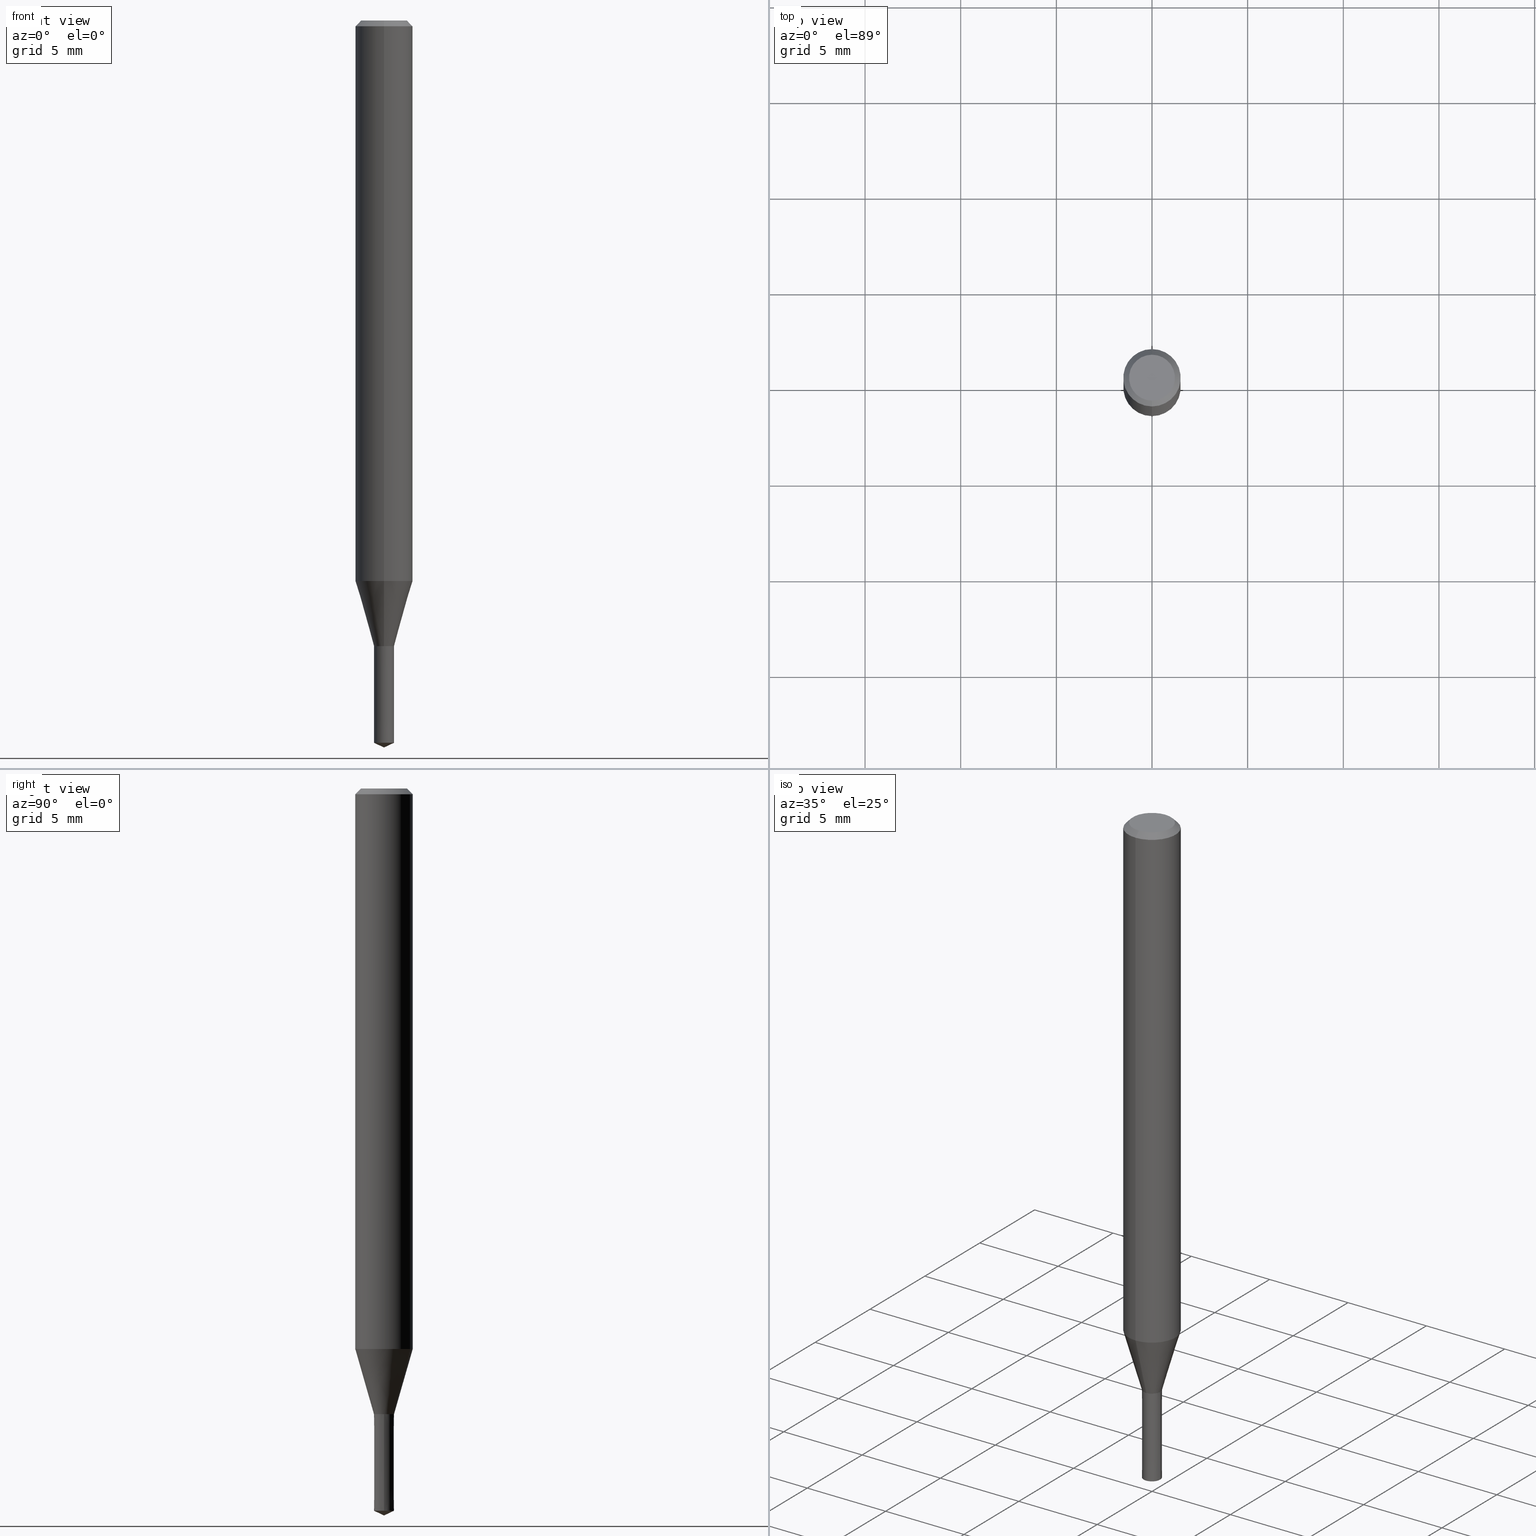
[diagram: canonical four-view strip — front | top / right | iso, engineering-drawing reading convention]
A machine part, canonical four-view strip (front | top / right | iso — engineering-drawing reading convention). The complete STEP part file that produces these views, byte-faithful:
ISO-10303-21;
HEADER;
FILE_DESCRIPTION(('no description'),'unknown implementation level');
FILE_NAME('UTDSX2105-053-Huellk.stp','  ',('CIMSOURCE GmbH'),('CADClick - KiM GmbH - www.kimweb.de'),'unknown preprocess','ACIS','unknown authorization');
FILE_SCHEMA(('automotive_design'));
ENDSEC;
DATA;
#1=MECHANICAL_DESIGN_GEOMETRIC_PRESENTATION_REPRESENTATION(' ',(#14,#15,#16,#17,#18,#19,#20,#21,#22,#23,#24,#25,#26,#27,#28,#29,#30,#31,#32,#33,#34,#35,#36,#37,#38,#39,#40,#41,#42,#43,#44,#45,#46,#47,#48,#49,#50,#51,#52,#53,#54,#55,#56,#57,#58,#59,#60,#61,#62,#63,#64,#65,#66,#67,#68,#69,#70,#71),#10);
#2=PRODUCT_DEFINITION_CONTEXT('',#72,'design');
#3=APPLICATION_PROTOCOL_DEFINITION('INTERNATIONAL STANDARD','automotive_design',1994,#72);
#4=PRODUCT_CATEGORY_RELATIONSHIP('NONE','NONE',#73,#74);
#5=SHAPE_DEFINITION_REPRESENTATION(#75,#76);
#6=PRODUCT_DEFINITION_CONTEXT('',#77,'design');
#7=APPLICATION_PROTOCOL_DEFINITION('INTERNATIONAL STANDARD','automotive_design',1994,#77);
#8=PRODUCT_CATEGORY_RELATIONSHIP('NONE','NONE',#78,#79);
#9=SHAPE_DEFINITION_REPRESENTATION(#80,#81);
#10= (GEOMETRIC_REPRESENTATION_CONTEXT(3)GLOBAL_UNCERTAINTY_ASSIGNED_CONTEXT((#84))GLOBAL_UNIT_ASSIGNED_CONTEXT((#86,#87,#88))REPRESENTATION_CONTEXT('NONE','WORKSPACE'));
#14=STYLED_ITEM('',(#90),#91);
#15=STYLED_ITEM('',(#92),#93);
#16=STYLED_ITEM('',(#94),#95);
#17=STYLED_ITEM('',(#96),#97);
#18=STYLED_ITEM('',(#98),#99);
#19=STYLED_ITEM('',(#100),#101);
#20=STYLED_ITEM('',(#102),#103);
#21=STYLED_ITEM('',(#104),#105);
#22=STYLED_ITEM('',(#106),#107);
#23=STYLED_ITEM('',(#108),#109);
#24=STYLED_ITEM('',(#110),#111);
#25=STYLED_ITEM('',(#112),#113);
#26=STYLED_ITEM('',(#114),#115);
#27=STYLED_ITEM('',(#116),#117);
#28=STYLED_ITEM('',(#118),#119);
#29=STYLED_ITEM('',(#120),#121);
#30=STYLED_ITEM('',(#122),#123);
#31=STYLED_ITEM('',(#124),#125);
#32=STYLED_ITEM('',(#126),#127);
#33=STYLED_ITEM('',(#128),#129);
#34=STYLED_ITEM('',(#130),#131);
#35=STYLED_ITEM('',(#132),#133);
#36=STYLED_ITEM('',(#134),#135);
#37=STYLED_ITEM('',(#136),#137);
#38=STYLED_ITEM('',(#138),#139);
#39=STYLED_ITEM('',(#140),#141);
#40=STYLED_ITEM('',(#142),#143);
#41=STYLED_ITEM('',(#144),#145);
#42=STYLED_ITEM('',(#146),#147);
#43=STYLED_ITEM('',(#148),#149);
#44=STYLED_ITEM('',(#150),#151);
#45=STYLED_ITEM('',(#152),#153);
#46=STYLED_ITEM('',(#154),#155);
#47=STYLED_ITEM('',(#156),#157);
#48=STYLED_ITEM('',(#158),#159);
#49=STYLED_ITEM('',(#160),#161);
#50=STYLED_ITEM('',(#162),#163);
#51=STYLED_ITEM('',(#164),#165);
#52=STYLED_ITEM('',(#166),#167);
#53=STYLED_ITEM('',(#168),#169);
#54=STYLED_ITEM('',(#170),#171);
#55=STYLED_ITEM('',(#172),#173);
#56=STYLED_ITEM('',(#174),#175);
#57=STYLED_ITEM('',(#176),#177);
#58=STYLED_ITEM('',(#178),#179);
#59=STYLED_ITEM('',(#180),#181);
#60=STYLED_ITEM('',(#182),#183);
#61=STYLED_ITEM('',(#184),#185);
#62=STYLED_ITEM('',(#186),#187);
#63=STYLED_ITEM('',(#188),#189);
#64=STYLED_ITEM('',(#190),#191);
#65=STYLED_ITEM('',(#192),#193);
#66=STYLED_ITEM('',(#194),#195);
#67=STYLED_ITEM('',(#196),#197);
#68=STYLED_ITEM('',(#198),#199);
#69=STYLED_ITEM('',(#200),#201);
#70=STYLED_ITEM('',(#202),#203);
#71=STYLED_ITEM('',(#204),#205);
#72=APPLICATION_CONTEXT(' ');
#73=PRODUCT_CATEGORY('part','NONE');
#74=PRODUCT_RELATED_PRODUCT_CATEGORY('detail',' ',(#206));
#75=PRODUCT_DEFINITION_SHAPE('NONE','NONE',#207);
#76=ADVANCED_BREP_SHAPE_REPRESENTATION('1',(#191,#208),#10);
#77=APPLICATION_CONTEXT(' ');
#78=PRODUCT_CATEGORY('part','NONE');
#79=PRODUCT_RELATED_PRODUCT_CATEGORY('detail',' ',(#209));
#80=PRODUCT_DEFINITION_SHAPE('NONE','NONE',#210);
#81=ADVANCED_BREP_SHAPE_REPRESENTATION('2',(#125,#211),#10);
#84=UNCERTAINTY_MEASURE_WITH_UNIT(LENGTH_MEASURE(1.0E-006),#86,'','');
#86= (CONVERSION_BASED_UNIT('MILLIMETRE',#214)LENGTH_UNIT()NAMED_UNIT(#217));
#87= (NAMED_UNIT(#219)PLANE_ANGLE_UNIT()SI_UNIT($,.RADIAN.));
#88= (NAMED_UNIT(#219)SOLID_ANGLE_UNIT()SI_UNIT($,.STERADIAN.));
#90=PRESENTATION_STYLE_ASSIGNMENT((#225));
#91=EDGE_CURVE('',#171,#153,#226,.T.);
#92=PRESENTATION_STYLE_ASSIGNMENT((#227));
#93=VERTEX_POINT('',#228);
#94=PRESENTATION_STYLE_ASSIGNMENT((#229));
#95=ADVANCED_FACE('',(#230),#231,.T.);
#96=PRESENTATION_STYLE_ASSIGNMENT((#232));
#97=VERTEX_POINT('',#233);
#98=PRESENTATION_STYLE_ASSIGNMENT((#234));
#99=EDGE_CURVE('',#97,#129,#235,.T.);
#100=PRESENTATION_STYLE_ASSIGNMENT((#236));
#101=VERTEX_POINT('',#237);
#102=PRESENTATION_STYLE_ASSIGNMENT((#238));
#103=ADVANCED_FACE('',(#239),#240,.T.);
#104=PRESENTATION_STYLE_ASSIGNMENT((#241));
#105=ADVANCED_FACE('',(#242),#243,.T.);
#106=PRESENTATION_STYLE_ASSIGNMENT((#244));
#107=EDGE_CURVE('',#93,#101,#245,.T.);
#108=PRESENTATION_STYLE_ASSIGNMENT((#246));
#109=EDGE_CURVE('',#153,#169,#247,.T.);
#110=PRESENTATION_STYLE_ASSIGNMENT((#248));
#111=EDGE_CURVE('',#171,#139,#249,.T.);
#112=PRESENTATION_STYLE_ASSIGNMENT((#250));
#113=ADVANCED_FACE('',(#251),#252,.T.);
#114=PRESENTATION_STYLE_ASSIGNMENT((#253));
#115=EDGE_CURVE('',#173,#127,#254,.T.);
#116=PRESENTATION_STYLE_ASSIGNMENT((#255));
#117=ADVANCED_FACE('',(#256),#257,.T.);
#118=PRESENTATION_STYLE_ASSIGNMENT((#258));
#119=ADVANCED_FACE('',(#259),#260,.T.);
#120=PRESENTATION_STYLE_ASSIGNMENT((#261));
#121=EDGE_CURVE('',#133,#201,#262,.T.);
#122=PRESENTATION_STYLE_ASSIGNMENT((#263));
#123=ADVANCED_FACE('',(#264),#265,.T.);
#124=PRESENTATION_STYLE_ASSIGNMENT((#266));
#125=MANIFOLD_SOLID_BREP('2',#267);
#126=PRESENTATION_STYLE_ASSIGNMENT((#268));
#127=VERTEX_POINT('',#269);
#128=PRESENTATION_STYLE_ASSIGNMENT((#270));
#129=VERTEX_POINT('',#271);
#130=PRESENTATION_STYLE_ASSIGNMENT((#272));
#131=EDGE_CURVE('',#127,#147,#273,.T.);
#132=PRESENTATION_STYLE_ASSIGNMENT((#274));
#133=VERTEX_POINT('',#275);
#134=PRESENTATION_STYLE_ASSIGNMENT((#276));
#135=ADVANCED_FACE('',(#277),#278,.T.);
#136=PRESENTATION_STYLE_ASSIGNMENT((#279));
#137=EDGE_CURVE('',#93,#169,#280,.T.);
#138=PRESENTATION_STYLE_ASSIGNMENT((#281));
#139=VERTEX_POINT('',#282);
#140=PRESENTATION_STYLE_ASSIGNMENT((#283));
#141=EDGE_CURVE('',#101,#139,#284,.T.);
#142=PRESENTATION_STYLE_ASSIGNMENT((#285));
#143=ADVANCED_FACE('',(#286),#287,.T.);
#144=PRESENTATION_STYLE_ASSIGNMENT((#288));
#145=ADVANCED_FACE('',(#289),#290,.T.);
#146=PRESENTATION_STYLE_ASSIGNMENT((#291));
#147=VERTEX_POINT('',#292);
#148=PRESENTATION_STYLE_ASSIGNMENT((#293));
#149=VERTEX_POINT('',#294);
#150=PRESENTATION_STYLE_ASSIGNMENT((#295));
#151=EDGE_CURVE('',#149,#203,#296,.T.);
#152=PRESENTATION_STYLE_ASSIGNMENT((#297));
#153=VERTEX_POINT('',#298);
#154=PRESENTATION_STYLE_ASSIGNMENT((#299));
#155=EDGE_CURVE('',#97,#173,#300,.T.);
#156=PRESENTATION_STYLE_ASSIGNMENT((#301));
#157=EDGE_CURVE('',#139,#171,#302,.T.);
#158=PRESENTATION_STYLE_ASSIGNMENT((#303));
#159=EDGE_CURVE('',#129,#97,#304,.T.);
#160=PRESENTATION_STYLE_ASSIGNMENT((#305));
#161=EDGE_CURVE('',#101,#153,#306,.T.);
#162=PRESENTATION_STYLE_ASSIGNMENT((#307));
#163=ADVANCED_FACE('',(#308),#309,.T.);
#164=PRESENTATION_STYLE_ASSIGNMENT((#310));
#165=ADVANCED_FACE('',(#311),#312,.T.);
#166=PRESENTATION_STYLE_ASSIGNMENT((#313));
#167=EDGE_CURVE('',#201,#133,#314,.T.);
#168=PRESENTATION_STYLE_ASSIGNMENT((#315));
#169=VERTEX_POINT('',#316);
#170=PRESENTATION_STYLE_ASSIGNMENT((#317));
#171=VERTEX_POINT('',#318);
#172=PRESENTATION_STYLE_ASSIGNMENT((#319));
#173=VERTEX_POINT('',#320);
#174=PRESENTATION_STYLE_ASSIGNMENT((#321));
#175=EDGE_CURVE('',#133,#171,#322,.T.);
#176=PRESENTATION_STYLE_ASSIGNMENT((#323));
#177=EDGE_CURVE('',#147,#129,#324,.T.);
#178=PRESENTATION_STYLE_ASSIGNMENT((#325));
#179=EDGE_CURVE('',#147,#173,#326,.T.);
#180=PRESENTATION_STYLE_ASSIGNMENT((#327));
#181=EDGE_CURVE('',#201,#149,#328,.T.);
#182=PRESENTATION_STYLE_ASSIGNMENT((#329));
#183=EDGE_CURVE('',#203,#149,#330,.T.);
#184=PRESENTATION_STYLE_ASSIGNMENT((#331));
#185=ADVANCED_FACE('',(#332),#333,.T.);
#186=PRESENTATION_STYLE_ASSIGNMENT((#334));
#187=EDGE_CURVE('',#203,#133,#335,.T.);
#188=PRESENTATION_STYLE_ASSIGNMENT((#336));
#189=EDGE_CURVE('',#173,#147,#337,.T.);
#190=PRESENTATION_STYLE_ASSIGNMENT((#338));
#191=MANIFOLD_SOLID_BREP('1',#339);
#192=PRESENTATION_STYLE_ASSIGNMENT((#340));
#193=EDGE_CURVE('',#169,#93,#341,.T.);
#194=PRESENTATION_STYLE_ASSIGNMENT((#342));
#195=EDGE_CURVE('',#153,#101,#343,.T.);
#196=PRESENTATION_STYLE_ASSIGNMENT((#344));
#197=ADVANCED_FACE('',(#345),#346,.T.);
#198=PRESENTATION_STYLE_ASSIGNMENT((#347));
#199=ADVANCED_FACE('',(#348),#349,.T.);
#200=PRESENTATION_STYLE_ASSIGNMENT((#350));
#201=VERTEX_POINT('',#351);
#202=PRESENTATION_STYLE_ASSIGNMENT((#352));
#203=VERTEX_POINT('',#353);
#204=PRESENTATION_STYLE_ASSIGNMENT((#354));
#205=EDGE_CURVE('',#139,#201,#355,.T.);
#206=PRODUCT('1','1','PART-1-DESC',(#356));
#207=PRODUCT_DEFINITION('NONE','NONE',#357,#2);
#208=AXIS2_PLACEMENT_3D('',#358,#359,#360);
#209=PRODUCT('2','2','PART-2-DESC',(#361));
#210=PRODUCT_DEFINITION('NONE','NONE',#362,#6);
#211=AXIS2_PLACEMENT_3D('',#363,#364,#365);
#214=LENGTH_MEASURE_WITH_UNIT(LENGTH_MEASURE(1.0),#366);
#217=DIMENSIONAL_EXPONENTS(1.0,0.0,0.0,0.0,0.0,0.0,0.0);
#219=DIMENSIONAL_EXPONENTS(0.0,0.0,0.0,0.0,0.0,0.0,0.0);
#225=CURVE_STYLE('',#367,POSITIVE_LENGTH_MEASURE(1.0E-006),#368);
#226=LINE('',#369,#370);
#227=POINT_STYLE(' ',#371,POSITIVE_LENGTH_MEASURE(1.0E-006),#372);
#228=CARTESIAN_POINT('',(0.0,1.2,0.0));
#229=SURFACE_STYLE_USAGE(.BOTH.,#373);
#230=FACE_OUTER_BOUND('',#374,.T.);
#231=CONICAL_SURFACE('',#375,0.2625,1.13446401462768);
#232=POINT_STYLE(' ',#376,POSITIVE_LENGTH_MEASURE(1.0E-006),#377);
#233=CARTESIAN_POINT('',(-0.526,0.0,-32.7));
#234=CURVE_STYLE('',#378,POSITIVE_LENGTH_MEASURE(1.0E-006),#379);
#235=CIRCLE('',#380,0.526);
#236=POINT_STYLE(' ',#381,POSITIVE_LENGTH_MEASURE(1.0E-006),#382);
#237=CARTESIAN_POINT('',(0.0,1.5,-0.300000000000001));
#238=SURFACE_STYLE_USAGE(.BOTH.,#383);
#239=FACE_OUTER_BOUND('',#384,.T.);
#240=CONICAL_SURFACE('',#385,1.35,0.785398163397447);
#241=SURFACE_STYLE_USAGE(.BOTH.,#386);
#242=FACE_OUTER_BOUND('',#387,.T.);
#243=CONICAL_SURFACE('',#388,1.0125,0.279338040987867);
#244=CURVE_STYLE('',#389,POSITIVE_LENGTH_MEASURE(1.0E-006),#390);
#245=LINE('',#391,#392);
#246=CURVE_STYLE('',#393,POSITIVE_LENGTH_MEASURE(1.0E-006),#394);
#247=LINE('',#395,#396);
#248=CURVE_STYLE('',#397,POSITIVE_LENGTH_MEASURE(1.0E-006),#398);
#249=CIRCLE('',#399,1.5);
#250=SURFACE_STYLE_USAGE(.BOTH.,#400);
#251=FACE_OUTER_BOUND('',#401,.T.);
#252=CONICAL_SURFACE('',#402,0.2625,1.13446401462768);
#253=CURVE_STYLE('',#403,POSITIVE_LENGTH_MEASURE(1.0E-006),#404);
#254=LINE('',#405,#406);
#255=SURFACE_STYLE_USAGE(.BOTH.,#407);
#256=FACE_OUTER_BOUND('',#408,.T.);
#257=PLANE('',#409);
#258=SURFACE_STYLE_USAGE(.BOTH.,#410);
#259=FACE_OUTER_BOUND('',#411,.T.);
#260=CONICAL_SURFACE('',#412,1.35,0.785398163397447);
#261=CURVE_STYLE('',#413,POSITIVE_LENGTH_MEASURE(1.0E-006),#414);
#262=CIRCLE('',#415,0.525);
#263=SURFACE_STYLE_USAGE(.BOTH.,#416);
#264=FACE_OUTER_BOUND('',#417,.T.);
#265=PLANE('',#418);
#266=SURFACE_STYLE_USAGE(.BOTH.,#419);
#267=CLOSED_SHELL('',(#113,#135,#117,#199,#95));
#268=POINT_STYLE(' ',#420,POSITIVE_LENGTH_MEASURE(1.0E-006),#421);
#269=CARTESIAN_POINT('',(0.0,0.0,-38.0));
#270=POINT_STYLE(' ',#422,POSITIVE_LENGTH_MEASURE(1.0E-006),#423);
#271=CARTESIAN_POINT('',(0.526,6.4414294211057E-017,-32.7));
#272=CURVE_STYLE('',#424,POSITIVE_LENGTH_MEASURE(1.0E-006),#425);
#273=LINE('',#426,#427);
#274=POINT_STYLE(' ',#428,POSITIVE_LENGTH_MEASURE(1.0E-006),#429);
#275=CARTESIAN_POINT('',(6.42918335756748E-017,-0.525,-32.6991339745962));
#276=SURFACE_STYLE_USAGE(.BOTH.,#430);
#277=FACE_OUTER_BOUND('',#431,.T.);
#278=CONICAL_SURFACE('',#432,0.5255,0.000197816558356337);
#279=CURVE_STYLE('',#433,POSITIVE_LENGTH_MEASURE(1.0E-006),#434);
#280=CIRCLE('',#435,1.2);
#281=POINT_STYLE(' ',#436,POSITIVE_LENGTH_MEASURE(1.0E-006),#437);
#282=CARTESIAN_POINT('',(0.0,1.5,-29.3));
#283=CURVE_STYLE('',#438,POSITIVE_LENGTH_MEASURE(1.0E-006),#439);
#284=LINE('',#440,#441);
#285=SURFACE_STYLE_USAGE(.BOTH.,#442);
#286=FACE_OUTER_BOUND('',#443,.T.);
#287=CONICAL_SURFACE('',#444,0.52525,0.52359877559836);
#288=SURFACE_STYLE_USAGE(.BOTH.,#445);
#289=FACE_OUTER_BOUND('',#446,.T.);
#290=CYLINDRICAL_SURFACE('',#447,1.5);
#291=POINT_STYLE(' ',#448,POSITIVE_LENGTH_MEASURE(1.0E-006),#449);
#292=CARTESIAN_POINT('',(0.525,6.42918335756748E-017,-37.75518848));
#293=POINT_STYLE(' ',#450,POSITIVE_LENGTH_MEASURE(1.0E-006),#451);
#294=CARTESIAN_POINT('',(0.0,0.5255,-32.7));
#295=CURVE_STYLE('',#452,POSITIVE_LENGTH_MEASURE(1.0E-006),#453);
#296=CIRCLE('',#454,0.5255);
#297=POINT_STYLE(' ',#455,POSITIVE_LENGTH_MEASURE(1.0E-006),#456);
#298=CARTESIAN_POINT('',(1.83690953073357E-016,-1.5,-0.300000000000001));
#299=CURVE_STYLE('',#457,POSITIVE_LENGTH_MEASURE(1.0E-006),#458);
#300=LINE('',#459,#460);
#301=CURVE_STYLE('',#461,POSITIVE_LENGTH_MEASURE(1.0E-006),#462);
#302=CIRCLE('',#463,1.5);
#303=CURVE_STYLE('',#464,POSITIVE_LENGTH_MEASURE(1.0E-006),#465);
#304=CIRCLE('',#466,0.526);
#305=CURVE_STYLE('',#467,POSITIVE_LENGTH_MEASURE(1.0E-006),#468);
#306=CIRCLE('',#469,1.5);
#307=SURFACE_STYLE_USAGE(.BOTH.,#470);
#308=FACE_OUTER_BOUND('',#471,.T.);
#309=CYLINDRICAL_SURFACE('',#472,1.5);
#310=SURFACE_STYLE_USAGE(.BOTH.,#473);
#311=FACE_OUTER_BOUND('',#474,.T.);
#312=PLANE('',#475);
#313=CURVE_STYLE('',#476,POSITIVE_LENGTH_MEASURE(1.0E-006),#477);
#314=CIRCLE('',#478,0.525);
#315=POINT_STYLE(' ',#479,POSITIVE_LENGTH_MEASURE(1.0E-006),#480);
#316=CARTESIAN_POINT('',(1.46952762458685E-016,-1.2,0.0));
#317=POINT_STYLE(' ',#481,POSITIVE_LENGTH_MEASURE(1.0E-006),#482);
#318=CARTESIAN_POINT('',(1.83690953073357E-016,-1.5,-29.3));
#319=POINT_STYLE(' ',#483,POSITIVE_LENGTH_MEASURE(1.0E-006),#484);
#320=CARTESIAN_POINT('',(-0.525,0.0,-37.75518848));
#321=CURVE_STYLE('',#485,POSITIVE_LENGTH_MEASURE(1.0E-006),#486);
#322=LINE('',#487,#488);
#323=CURVE_STYLE('',#489,POSITIVE_LENGTH_MEASURE(1.0E-006),#490);
#324=LINE('',#491,#492);
#325=CURVE_STYLE('',#493,POSITIVE_LENGTH_MEASURE(1.0E-006),#494);
#326=CIRCLE('',#495,0.525);
#327=CURVE_STYLE('',#496,POSITIVE_LENGTH_MEASURE(1.0E-006),#497);
#328=LINE('',#498,#499);
#329=CURVE_STYLE('',#500,POSITIVE_LENGTH_MEASURE(1.0E-006),#501);
#330=CIRCLE('',#502,0.5255);
#331=SURFACE_STYLE_USAGE(.BOTH.,#503);
#332=FACE_OUTER_BOUND('',#504,.T.);
#333=CONICAL_SURFACE('',#505,1.0125,0.279338040987867);
#334=CURVE_STYLE('',#506,POSITIVE_LENGTH_MEASURE(1.0E-006),#507);
#335=LINE('',#508,#509);
#336=CURVE_STYLE('',#510,POSITIVE_LENGTH_MEASURE(1.0E-006),#511);
#337=CIRCLE('',#512,0.525);
#338=SURFACE_STYLE_USAGE(.BOTH.,#513);
#339=CLOSED_SHELL('',(#143,#105,#145,#103,#123,#119,#163,#185,#197,#165));
#340=CURVE_STYLE('',#514,POSITIVE_LENGTH_MEASURE(1.0E-006),#515);
#341=CIRCLE('',#516,1.2);
#342=CURVE_STYLE('',#517,POSITIVE_LENGTH_MEASURE(1.0E-006),#518);
#343=CIRCLE('',#519,1.5);
#344=SURFACE_STYLE_USAGE(.BOTH.,#520);
#345=FACE_OUTER_BOUND('',#521,.T.);
#346=CONICAL_SURFACE('',#522,0.52525,0.52359877559836);
#347=SURFACE_STYLE_USAGE(.BOTH.,#523);
#348=FACE_OUTER_BOUND('',#524,.T.);
#349=CONICAL_SURFACE('',#525,0.5255,0.000197816558356337);
#350=POINT_STYLE(' ',#526,POSITIVE_LENGTH_MEASURE(1.0E-006),#527);
#351=CARTESIAN_POINT('',(0.0,0.525,-32.6991339745962));
#352=POINT_STYLE(' ',#528,POSITIVE_LENGTH_MEASURE(1.0E-006),#529);
#353=CARTESIAN_POINT('',(6.43530638933659E-017,-0.5255,-32.7));
#354=CURVE_STYLE('',#530,POSITIVE_LENGTH_MEASURE(1.0E-006),#531);
#355=LINE('',#532,#533);
#356=PRODUCT_CONTEXT('',#72,'mechanical');
#357=PRODUCT_DEFINITION_FORMATION_WITH_SPECIFIED_SOURCE(' ','NONE',#206,.NOT_KNOWN.);
#358=CARTESIAN_POINT('',(0.0,0.0,0.0));
#359=DIRECTION('',(0.0,0.0,1.0));
#360=DIRECTION('',(1.0,0.0,0.0));
#361=PRODUCT_CONTEXT('',#77,'mechanical');
#362=PRODUCT_DEFINITION_FORMATION_WITH_SPECIFIED_SOURCE(' ','NONE',#209,.NOT_KNOWN.);
#363=CARTESIAN_POINT('',(0.0,0.0,0.0));
#364=DIRECTION('',(0.0,0.0,1.0));
#365=DIRECTION('',(1.0,0.0,0.0));
#366= (NAMED_UNIT(#217)LENGTH_UNIT()SI_UNIT(.MILLI.,.METRE.));
#367=DRAUGHTING_PRE_DEFINED_CURVE_FONT('continuous');
#368=COLOUR_RGB('',0.498039215803146,0.498039215803146,0.498039215803146);
#369=CARTESIAN_POINT('',(1.83690953073357E-016,-1.5,-14.8));
#370=VECTOR('',#535,1.0);
#371=PRE_DEFINED_MARKER('');
#372=COLOUR_RGB('',0.498039215803146,0.498039215803146,0.498039215803146);
#373=SURFACE_SIDE_STYLE('',(#536));
#374=EDGE_LOOP('',(#537,#538,#539));
#375=AXIS2_PLACEMENT_3D('',#540,#541,#542);
#376=PRE_DEFINED_MARKER('');
#377=COLOUR_RGB('',0.800000011920929,0.800000011920929,0.800000011920929);
#378=DRAUGHTING_PRE_DEFINED_CURVE_FONT('continuous');
#379=COLOUR_RGB('',0.800000011920929,0.800000011920929,0.800000011920929);
#380=AXIS2_PLACEMENT_3D('',#543,#544,#545);
#381=PRE_DEFINED_MARKER('');
#382=COLOUR_RGB('',0.498039215803146,0.498039215803146,0.498039215803146);
#383=SURFACE_SIDE_STYLE('',(#546));
#384=EDGE_LOOP('',(#547,#548,#549,#550));
#385=AXIS2_PLACEMENT_3D('',#551,#552,#553);
#386=SURFACE_SIDE_STYLE('',(#554));
#387=EDGE_LOOP('',(#555,#556,#557,#558));
#388=AXIS2_PLACEMENT_3D('',#559,#560,#561);
#389=DRAUGHTING_PRE_DEFINED_CURVE_FONT('continuous');
#390=COLOUR_RGB('',0.498039215803146,0.498039215803146,0.498039215803146);
#391=CARTESIAN_POINT('',(-1.65321857766021E-016,1.35,-0.149999999999999));
#392=VECTOR('',#562,1.0);
#393=DRAUGHTING_PRE_DEFINED_CURVE_FONT('continuous');
#394=COLOUR_RGB('',0.498039215803146,0.498039215803146,0.498039215803146);
#395=CARTESIAN_POINT('',(1.65321857766021E-016,-1.35,-0.149999999999999));
#396=VECTOR('',#563,1.0);
#397=DRAUGHTING_PRE_DEFINED_CURVE_FONT('continuous');
#398=COLOUR_RGB('',0.498039215803146,0.498039215803146,0.498039215803146);
#399=AXIS2_PLACEMENT_3D('',#564,#565,#566);
#400=SURFACE_SIDE_STYLE('',(#567));
#401=EDGE_LOOP('',(#568,#569,#570));
#402=AXIS2_PLACEMENT_3D('',#571,#572,#573);
#403=DRAUGHTING_PRE_DEFINED_CURVE_FONT('continuous');
#404=COLOUR_RGB('',0.800000011920929,0.800000011920929,0.800000011920929);
#405=CARTESIAN_POINT('',(-0.2625,-3.21459167878374E-017,-37.87759424));
#406=VECTOR('',#574,1.0);
#407=SURFACE_SIDE_STYLE('',(#575));
#408=EDGE_LOOP('',(#576,#577));
#409=AXIS2_PLACEMENT_3D('',#578,#579,#580);
#410=SURFACE_SIDE_STYLE('',(#581));
#411=EDGE_LOOP('',(#582,#583,#584,#585));
#412=AXIS2_PLACEMENT_3D('',#586,#587,#588);
#413=DRAUGHTING_PRE_DEFINED_CURVE_FONT('continuous');
#414=COLOUR_RGB('',0.498039215803146,0.498039215803146,0.498039215803146);
#415=AXIS2_PLACEMENT_3D('',#589,#590,#591);
#416=SURFACE_SIDE_STYLE('',(#592));
#417=EDGE_LOOP('',(#593,#594));
#418=AXIS2_PLACEMENT_3D('',#595,#596,#597);
#419=SURFACE_SIDE_STYLE('',(#598));
#420=PRE_DEFINED_MARKER('');
#421=COLOUR_RGB('',0.800000011920929,0.800000011920929,0.800000011920929);
#422=PRE_DEFINED_MARKER('');
#423=COLOUR_RGB('',0.800000011920929,0.800000011920929,0.800000011920929);
#424=DRAUGHTING_PRE_DEFINED_CURVE_FONT('continuous');
#425=COLOUR_RGB('',0.800000011920929,0.800000011920929,0.800000011920929);
#426=CARTESIAN_POINT('',(0.2625,3.21459167878374E-017,-37.87759424));
#427=VECTOR('',#599,1.0);
#428=PRE_DEFINED_MARKER('');
#429=COLOUR_RGB('',0.498039215803146,0.498039215803146,0.498039215803146);
#430=SURFACE_SIDE_STYLE('',(#600));
#431=EDGE_LOOP('',(#601,#602,#603,#604));
#432=AXIS2_PLACEMENT_3D('',#605,#606,#607);
#433=DRAUGHTING_PRE_DEFINED_CURVE_FONT('continuous');
#434=COLOUR_RGB('',0.498039215803146,0.498039215803146,0.498039215803146);
#435=AXIS2_PLACEMENT_3D('',#608,#609,#610);
#436=PRE_DEFINED_MARKER('');
#437=COLOUR_RGB('',0.498039215803146,0.498039215803146,0.498039215803146);
#438=DRAUGHTING_PRE_DEFINED_CURVE_FONT('continuous');
#439=COLOUR_RGB('',0.498039215803146,0.498039215803146,0.498039215803146);
#440=CARTESIAN_POINT('',(-1.83690953073357E-016,1.5,-14.8));
#441=VECTOR('',#611,1.0);
#442=SURFACE_SIDE_STYLE('',(#612));
#443=EDGE_LOOP('',(#613,#614,#615,#616));
#444=AXIS2_PLACEMENT_3D('',#617,#618,#619);
#445=SURFACE_SIDE_STYLE('',(#620));
#446=EDGE_LOOP('',(#621,#622,#623,#624));
#447=AXIS2_PLACEMENT_3D('',#625,#626,#627);
#448=PRE_DEFINED_MARKER('');
#449=COLOUR_RGB('',0.800000011920929,0.800000011920929,0.800000011920929);
#450=PRE_DEFINED_MARKER('');
#451=COLOUR_RGB('',0.498039215803146,0.498039215803146,0.498039215803146);
#452=DRAUGHTING_PRE_DEFINED_CURVE_FONT('continuous');
#453=COLOUR_RGB('',0.498039215803146,0.498039215803146,0.498039215803146);
#454=AXIS2_PLACEMENT_3D('',#628,#629,#630);
#455=PRE_DEFINED_MARKER('');
#456=COLOUR_RGB('',0.498039215803146,0.498039215803146,0.498039215803146);
#457=DRAUGHTING_PRE_DEFINED_CURVE_FONT('continuous');
#458=COLOUR_RGB('',0.800000011920929,0.800000011920929,0.800000011920929);
#459=CARTESIAN_POINT('',(-0.5255,-6.43530638933659E-017,-35.22759424));
#460=VECTOR('',#631,1.0);
#461=DRAUGHTING_PRE_DEFINED_CURVE_FONT('continuous');
#462=COLOUR_RGB('',0.498039215803146,0.498039215803146,0.498039215803146);
#463=AXIS2_PLACEMENT_3D('',#632,#633,#634);
#464=DRAUGHTING_PRE_DEFINED_CURVE_FONT('continuous');
#465=COLOUR_RGB('',0.800000011920929,0.800000011920929,0.800000011920929);
#466=AXIS2_PLACEMENT_3D('',#635,#636,#637);
#467=DRAUGHTING_PRE_DEFINED_CURVE_FONT('continuous');
#468=COLOUR_RGB('',0.498039215803146,0.498039215803146,0.498039215803146);
#469=AXIS2_PLACEMENT_3D('',#638,#639,#640);
#470=SURFACE_SIDE_STYLE('',(#641));
#471=EDGE_LOOP('',(#642,#643,#644,#645));
#472=AXIS2_PLACEMENT_3D('',#646,#647,#648);
#473=SURFACE_SIDE_STYLE('',(#649));
#474=EDGE_LOOP('',(#650,#651));
#475=AXIS2_PLACEMENT_3D('',#652,#653,#654);
#476=DRAUGHTING_PRE_DEFINED_CURVE_FONT('continuous');
#477=COLOUR_RGB('',0.498039215803146,0.498039215803146,0.498039215803146);
#478=AXIS2_PLACEMENT_3D('',#655,#656,#657);
#479=PRE_DEFINED_MARKER('');
#480=COLOUR_RGB('',0.498039215803146,0.498039215803146,0.498039215803146);
#481=PRE_DEFINED_MARKER('');
#482=COLOUR_RGB('',0.498039215803146,0.498039215803146,0.498039215803146);
#483=PRE_DEFINED_MARKER('');
#484=COLOUR_RGB('',0.800000011920929,0.800000011920929,0.800000011920929);
#485=DRAUGHTING_PRE_DEFINED_CURVE_FONT('continuous');
#486=COLOUR_RGB('',0.498039215803146,0.498039215803146,0.498039215803146);
#487=CARTESIAN_POINT('',(1.23991393324516E-016,-1.0125,-30.9995669872981));
#488=VECTOR('',#658,1.0);
#489=DRAUGHTING_PRE_DEFINED_CURVE_FONT('continuous');
#490=COLOUR_RGB('',0.800000011920929,0.800000011920929,0.800000011920929);
#491=CARTESIAN_POINT('',(0.5255,6.43530638933659E-017,-35.22759424));
#492=VECTOR('',#659,1.0);
#493=DRAUGHTING_PRE_DEFINED_CURVE_FONT('continuous');
#494=COLOUR_RGB('',0.800000011920929,0.800000011920929,0.800000011920929);
#495=AXIS2_PLACEMENT_3D('',#660,#661,#662);
#496=DRAUGHTING_PRE_DEFINED_CURVE_FONT('continuous');
#497=COLOUR_RGB('',0.498039215803146,0.498039215803146,0.498039215803146);
#498=CARTESIAN_POINT('',(-6.43224487345204E-017,0.52525,-32.6995669872981));
#499=VECTOR('',#663,1.0);
#500=DRAUGHTING_PRE_DEFINED_CURVE_FONT('continuous');
#501=COLOUR_RGB('',0.498039215803146,0.498039215803146,0.498039215803146);
#502=AXIS2_PLACEMENT_3D('',#664,#665,#666);
#503=SURFACE_SIDE_STYLE('',(#667));
#504=EDGE_LOOP('',(#668,#669,#670,#671));
#505=AXIS2_PLACEMENT_3D('',#672,#673,#674);
#506=DRAUGHTING_PRE_DEFINED_CURVE_FONT('continuous');
#507=COLOUR_RGB('',0.498039215803146,0.498039215803146,0.498039215803146);
#508=CARTESIAN_POINT('',(6.43224487345203E-017,-0.52525,-32.6995669872981));
#509=VECTOR('',#675,1.0);
#510=DRAUGHTING_PRE_DEFINED_CURVE_FONT('continuous');
#511=COLOUR_RGB('',0.800000011920929,0.800000011920929,0.800000011920929);
#512=AXIS2_PLACEMENT_3D('',#676,#677,#678);
#513=SURFACE_SIDE_STYLE('',(#679));
#514=DRAUGHTING_PRE_DEFINED_CURVE_FONT('continuous');
#515=COLOUR_RGB('',0.498039215803146,0.498039215803146,0.498039215803146);
#516=AXIS2_PLACEMENT_3D('',#680,#681,#682);
#517=DRAUGHTING_PRE_DEFINED_CURVE_FONT('continuous');
#518=COLOUR_RGB('',0.498039215803146,0.498039215803146,0.498039215803146);
#519=AXIS2_PLACEMENT_3D('',#683,#684,#685);
#520=SURFACE_SIDE_STYLE('',(#686));
#521=EDGE_LOOP('',(#687,#688,#689,#690));
#522=AXIS2_PLACEMENT_3D('',#691,#692,#693);
#523=SURFACE_SIDE_STYLE('',(#694));
#524=EDGE_LOOP('',(#695,#696,#697,#698));
#525=AXIS2_PLACEMENT_3D('',#699,#700,#701);
#526=PRE_DEFINED_MARKER('');
#527=COLOUR_RGB('',0.498039215803146,0.498039215803146,0.498039215803146);
#528=PRE_DEFINED_MARKER('');
#529=COLOUR_RGB('',0.498039215803146,0.498039215803146,0.498039215803146);
#530=DRAUGHTING_PRE_DEFINED_CURVE_FONT('continuous');
#531=COLOUR_RGB('',0.498039215803146,0.498039215803146,0.498039215803146);
#532=CARTESIAN_POINT('',(-1.23991393324516E-016,1.0125,-30.9995669872981));
#533=VECTOR('',#702,1.0);
#535=DIRECTION('',(-0.0,-0.0,1.0));
#536=SURFACE_STYLE_FILL_AREA(#703);
#537=ORIENTED_EDGE('',*,*,#131,.T.);
#538=ORIENTED_EDGE('',*,*,#179,.T.);
#539=ORIENTED_EDGE('',*,*,#115,.T.);
#540=CARTESIAN_POINT('',(0.0,0.0,-37.87759424));
#541=DIRECTION('',(-0.0,-0.0,1.0));
#542=DIRECTION('',(-1.0,0.0,0.0));
#543=CARTESIAN_POINT('',(0.0,0.0,-32.7));
#544=DIRECTION('',(0.0,0.0,-1.0));
#545=DIRECTION('',(-1.0,0.0,0.0));
#546=SURFACE_STYLE_FILL_AREA(#704);
#547=ORIENTED_EDGE('',*,*,#107,.F.);
#548=ORIENTED_EDGE('',*,*,#137,.T.);
#549=ORIENTED_EDGE('',*,*,#109,.F.);
#550=ORIENTED_EDGE('',*,*,#161,.F.);
#551=CARTESIAN_POINT('',(0.0,0.0,-0.149999999999999));
#552=DIRECTION('',(0.0,-0.0,-1.0));
#553=DIRECTION('',(0.0,1.0,0.0));
#554=SURFACE_STYLE_FILL_AREA(#705);
#555=ORIENTED_EDGE('',*,*,#205,.F.);
#556=ORIENTED_EDGE('',*,*,#157,.T.);
#557=ORIENTED_EDGE('',*,*,#175,.F.);
#558=ORIENTED_EDGE('',*,*,#167,.F.);
#559=CARTESIAN_POINT('',(0.0,0.0,-30.9995669872981));
#560=DIRECTION('',(-0.0,-0.0,1.0));
#561=DIRECTION('',(0.0,1.0,0.0));
#562=DIRECTION('',(-8.65927457071934E-017,0.707106781186546,-0.707106781186549));
#563=DIRECTION('',(-8.65927457071934E-017,0.707106781186546,0.707106781186549));
#564=CARTESIAN_POINT('',(0.0,0.0,-29.3));
#565=DIRECTION('',(0.0,0.0,-1.0));
#566=DIRECTION('',(0.0,1.0,0.0));
#567=SURFACE_STYLE_FILL_AREA(#706);
#568=ORIENTED_EDGE('',*,*,#131,.F.);
#569=ORIENTED_EDGE('',*,*,#115,.F.);
#570=ORIENTED_EDGE('',*,*,#189,.T.);
#571=CARTESIAN_POINT('',(0.0,0.0,-37.87759424));
#572=DIRECTION('',(-0.0,-0.0,1.0));
#573=DIRECTION('',(-1.0,0.0,0.0));
#574=DIRECTION('',(0.906307787388001,1.10987027495405E-016,-0.422618260987225));
#575=SURFACE_STYLE_FILL_AREA(#707);
#576=ORIENTED_EDGE('',*,*,#99,.F.);
#577=ORIENTED_EDGE('',*,*,#159,.F.);
#578=CARTESIAN_POINT('',(-0.263,0.0,-32.7));
#579=DIRECTION('',(0.0,0.0,1.0));
#580=DIRECTION('',(1.0,0.0,0.0));
#581=SURFACE_STYLE_FILL_AREA(#708);
#582=ORIENTED_EDGE('',*,*,#107,.T.);
#583=ORIENTED_EDGE('',*,*,#195,.F.);
#584=ORIENTED_EDGE('',*,*,#109,.T.);
#585=ORIENTED_EDGE('',*,*,#193,.T.);
#586=CARTESIAN_POINT('',(0.0,0.0,-0.149999999999999));
#587=DIRECTION('',(0.0,-0.0,-1.0));
#588=DIRECTION('',(0.0,1.0,0.0));
#589=CARTESIAN_POINT('',(0.0,0.0,-32.6991339745962));
#590=DIRECTION('',(0.0,0.0,-1.0));
#591=DIRECTION('',(0.0,1.0,0.0));
#592=SURFACE_STYLE_FILL_AREA(#709);
#593=ORIENTED_EDGE('',*,*,#137,.F.);
#594=ORIENTED_EDGE('',*,*,#193,.F.);
#595=CARTESIAN_POINT('',(0.0,0.6,0.0));
#596=DIRECTION('',(-0.0,0.0,1.0));
#597=DIRECTION('',(0.0,-1.0,0.0));
#598=SURFACE_STYLE_FILL_AREA(#710);
#599=DIRECTION('',(0.906307787388001,1.10987027495405E-016,0.422618260987225));
#600=SURFACE_STYLE_FILL_AREA(#711);
#601=ORIENTED_EDGE('',*,*,#155,.F.);
#602=ORIENTED_EDGE('',*,*,#99,.T.);
#603=ORIENTED_EDGE('',*,*,#177,.F.);
#604=ORIENTED_EDGE('',*,*,#189,.F.);
#605=CARTESIAN_POINT('',(0.0,0.0,-35.22759424));
#606=DIRECTION('',(-0.0,-0.0,1.0));
#607=DIRECTION('',(-1.0,0.0,0.0));
#608=CARTESIAN_POINT('',(0.0,0.0,0.0));
#609=DIRECTION('',(0.0,0.0,-1.0));
#610=DIRECTION('',(0.0,1.0,0.0));
#611=DIRECTION('',(0.0,0.0,-1.0));
#612=SURFACE_STYLE_FILL_AREA(#712);
#613=ORIENTED_EDGE('',*,*,#181,.F.);
#614=ORIENTED_EDGE('',*,*,#167,.T.);
#615=ORIENTED_EDGE('',*,*,#187,.F.);
#616=ORIENTED_EDGE('',*,*,#151,.F.);
#617=CARTESIAN_POINT('',(0.0,0.0,-32.6995669872981));
#618=DIRECTION('',(0.0,-0.0,-1.0));
#619=DIRECTION('',(0.0,1.0,0.0));
#620=SURFACE_STYLE_FILL_AREA(#713);
#621=ORIENTED_EDGE('',*,*,#141,.F.);
#622=ORIENTED_EDGE('',*,*,#161,.T.);
#623=ORIENTED_EDGE('',*,*,#91,.F.);
#624=ORIENTED_EDGE('',*,*,#157,.F.);
#625=CARTESIAN_POINT('',(0.0,0.0,-14.8));
#626=DIRECTION('',(-0.0,-0.0,1.0));
#627=DIRECTION('',(0.0,1.0,0.0));
#628=CARTESIAN_POINT('',(0.0,0.0,-32.7));
#629=DIRECTION('',(0.0,0.0,-1.0));
#630=DIRECTION('',(0.0,1.0,0.0));
#631=DIRECTION('',(0.000197816557066198,2.42247412674533E-020,-0.999999980434305));
#632=CARTESIAN_POINT('',(0.0,0.0,-29.3));
#633=DIRECTION('',(0.0,0.0,-1.0));
#634=DIRECTION('',(0.0,1.0,0.0));
#635=CARTESIAN_POINT('',(0.0,0.0,-32.7));
#636=DIRECTION('',(0.0,0.0,-1.0));
#637=DIRECTION('',(-1.0,0.0,0.0));
#638=CARTESIAN_POINT('',(0.0,0.0,-0.300000000000001));
#639=DIRECTION('',(0.0,0.0,-1.0));
#640=DIRECTION('',(0.0,1.0,0.0));
#641=SURFACE_STYLE_FILL_AREA(#714);
#642=ORIENTED_EDGE('',*,*,#141,.T.);
#643=ORIENTED_EDGE('',*,*,#111,.F.);
#644=ORIENTED_EDGE('',*,*,#91,.T.);
#645=ORIENTED_EDGE('',*,*,#195,.T.);
#646=CARTESIAN_POINT('',(0.0,0.0,-14.8));
#647=DIRECTION('',(-0.0,-0.0,1.0));
#648=DIRECTION('',(0.0,1.0,0.0));
#649=SURFACE_STYLE_FILL_AREA(#715);
#650=ORIENTED_EDGE('',*,*,#151,.T.);
#651=ORIENTED_EDGE('',*,*,#183,.T.);
#652=CARTESIAN_POINT('',(0.0,0.26275,-32.7));
#653=DIRECTION('',(0.0,0.0,-1.0));
#654=DIRECTION('',(0.0,1.0,0.0));
#655=CARTESIAN_POINT('',(0.0,0.0,-32.6991339745962));
#656=DIRECTION('',(0.0,0.0,-1.0));
#657=DIRECTION('',(0.0,1.0,0.0));
#658=DIRECTION('',(3.37647739832205E-017,-0.275719408753924,0.961238163847226));
#659=DIRECTION('',(0.000197816557066198,2.42247412674533E-020,0.999999980434305));
#660=CARTESIAN_POINT('',(0.0,0.0,-37.75518848));
#661=DIRECTION('',(0.0,0.0,-1.0));
#662=DIRECTION('',(-1.0,0.0,0.0));
#663=DIRECTION('',(-6.1230317691125E-017,0.50000000000005,-0.86602540378441));
#664=CARTESIAN_POINT('',(0.0,0.0,-32.7));
#665=DIRECTION('',(0.0,0.0,-1.0));
#666=DIRECTION('',(0.0,1.0,0.0));
#667=SURFACE_STYLE_FILL_AREA(#716);
#668=ORIENTED_EDGE('',*,*,#205,.T.);
#669=ORIENTED_EDGE('',*,*,#121,.F.);
#670=ORIENTED_EDGE('',*,*,#175,.T.);
#671=ORIENTED_EDGE('',*,*,#111,.T.);
#672=CARTESIAN_POINT('',(0.0,0.0,-30.9995669872981));
#673=DIRECTION('',(-0.0,-0.0,1.0));
#674=DIRECTION('',(0.0,1.0,0.0));
#675=DIRECTION('',(-6.1230317691125E-017,0.50000000000005,0.86602540378441));
#676=CARTESIAN_POINT('',(0.0,0.0,-37.75518848));
#677=DIRECTION('',(0.0,0.0,-1.0));
#678=DIRECTION('',(-1.0,0.0,0.0));
#679=SURFACE_STYLE_FILL_AREA(#717);
#680=CARTESIAN_POINT('',(0.0,0.0,0.0));
#681=DIRECTION('',(0.0,0.0,-1.0));
#682=DIRECTION('',(0.0,1.0,0.0));
#683=CARTESIAN_POINT('',(0.0,0.0,-0.300000000000001));
#684=DIRECTION('',(0.0,0.0,-1.0));
#685=DIRECTION('',(0.0,1.0,0.0));
#686=SURFACE_STYLE_FILL_AREA(#718);
#687=ORIENTED_EDGE('',*,*,#181,.T.);
#688=ORIENTED_EDGE('',*,*,#183,.F.);
#689=ORIENTED_EDGE('',*,*,#187,.T.);
#690=ORIENTED_EDGE('',*,*,#121,.T.);
#691=CARTESIAN_POINT('',(0.0,0.0,-32.6995669872981));
#692=DIRECTION('',(0.0,-0.0,-1.0));
#693=DIRECTION('',(0.0,1.0,0.0));
#694=SURFACE_STYLE_FILL_AREA(#719);
#695=ORIENTED_EDGE('',*,*,#155,.T.);
#696=ORIENTED_EDGE('',*,*,#179,.F.);
#697=ORIENTED_EDGE('',*,*,#177,.T.);
#698=ORIENTED_EDGE('',*,*,#159,.T.);
#699=CARTESIAN_POINT('',(0.0,0.0,-35.22759424));
#700=DIRECTION('',(-0.0,-0.0,1.0));
#701=DIRECTION('',(-1.0,0.0,0.0));
#702=DIRECTION('',(3.37647739832205E-017,-0.275719408753924,-0.961238163847226));
#703=FILL_AREA_STYLE('',(#720));
#704=FILL_AREA_STYLE('',(#721));
#705=FILL_AREA_STYLE('',(#722));
#706=FILL_AREA_STYLE('',(#723));
#707=FILL_AREA_STYLE('',(#724));
#708=FILL_AREA_STYLE('',(#725));
#709=FILL_AREA_STYLE('',(#726));
#710=FILL_AREA_STYLE('',(#727));
#711=FILL_AREA_STYLE('',(#728));
#712=FILL_AREA_STYLE('',(#729));
#713=FILL_AREA_STYLE('',(#730));
#714=FILL_AREA_STYLE('',(#731));
#715=FILL_AREA_STYLE('',(#732));
#716=FILL_AREA_STYLE('',(#733));
#717=FILL_AREA_STYLE('',(#734));
#718=FILL_AREA_STYLE('',(#735));
#719=FILL_AREA_STYLE('',(#736));
#720=FILL_AREA_STYLE_COLOUR('',#737);
#721=FILL_AREA_STYLE_COLOUR('',#738);
#722=FILL_AREA_STYLE_COLOUR('',#739);
#723=FILL_AREA_STYLE_COLOUR('',#740);
#724=FILL_AREA_STYLE_COLOUR('',#741);
#725=FILL_AREA_STYLE_COLOUR('',#742);
#726=FILL_AREA_STYLE_COLOUR('',#743);
#727=FILL_AREA_STYLE_COLOUR('',#744);
#728=FILL_AREA_STYLE_COLOUR('',#745);
#729=FILL_AREA_STYLE_COLOUR('',#746);
#730=FILL_AREA_STYLE_COLOUR('',#747);
#731=FILL_AREA_STYLE_COLOUR('',#748);
#732=FILL_AREA_STYLE_COLOUR('',#749);
#733=FILL_AREA_STYLE_COLOUR('',#750);
#734=FILL_AREA_STYLE_COLOUR('',#751);
#735=FILL_AREA_STYLE_COLOUR('',#752);
#736=FILL_AREA_STYLE_COLOUR('',#753);
#737=COLOUR_RGB('',0.800000011920929,0.800000011920929,0.800000011920929);
#738=COLOUR_RGB('',0.498039215803146,0.498039215803146,0.498039215803146);
#739=COLOUR_RGB('',0.498039215803146,0.498039215803146,0.498039215803146);
#740=COLOUR_RGB('',0.800000011920929,0.800000011920929,0.800000011920929);
#741=COLOUR_RGB('',0.800000011920929,0.800000011920929,0.800000011920929);
#742=COLOUR_RGB('',0.498039215803146,0.498039215803146,0.498039215803146);
#743=COLOUR_RGB('',0.498039215803146,0.498039215803146,0.498039215803146);
#744=COLOUR_RGB('',0.800000011920929,0.800000011920929,0.800000011920929);
#745=COLOUR_RGB('',0.800000011920929,0.800000011920929,0.800000011920929);
#746=COLOUR_RGB('',0.498039215803146,0.498039215803146,0.498039215803146);
#747=COLOUR_RGB('',0.498039215803146,0.498039215803146,0.498039215803146);
#748=COLOUR_RGB('',0.498039215803146,0.498039215803146,0.498039215803146);
#749=COLOUR_RGB('',0.498039215803146,0.498039215803146,0.498039215803146);
#750=COLOUR_RGB('',0.498039215803146,0.498039215803146,0.498039215803146);
#751=COLOUR_RGB('',0.498039215803146,0.498039215803146,0.498039215803146);
#752=COLOUR_RGB('',0.498039215803146,0.498039215803146,0.498039215803146);
#753=COLOUR_RGB('',0.800000011920929,0.800000011920929,0.800000011920929);
#754=AXIS2_PLACEMENT_3D('PCS',#755,#756,#757);
#755=CARTESIAN_POINT('',(0.0,0.0,0.0));
#756=DIRECTION('',(0.0,0.0,1.0));
#757=DIRECTION('',(1.0,0.0,0.0));
#758=AXIS2_PLACEMENT_3D('CIP',#759,#760,#761);
#759=CARTESIAN_POINT('',(0.0,0.0,-38.0));
#760=DIRECTION('',(0.0,0.0,1.0));
#761=DIRECTION('',(1.0,0.0,0.0));
#762=AXIS2_PLACEMENT_3D('CRP',#763,#764,#765);
#763=CARTESIAN_POINT('',(-0.525,0.0,-37.7552));
#764=DIRECTION('',(0.0,0.0,1.0));
#765=DIRECTION('',(1.0,0.0,0.0));
#766=AXIS2_PLACEMENT_3D('MCS',#767,#768,#769);
#767=CARTESIAN_POINT('',(0.0,0.0,-29.3));
#768=DIRECTION('',(0.0,0.0,1.0));
#769=DIRECTION('',(1.0,0.0,0.0));
#770=CONSTRUCTIVE_GEOMETRY_REPRESENTATION_RELATIONSHIP('coordinate systems',$,#76,#771);
#771=CONSTRUCTIVE_GEOMETRY_REPRESENTATION('coordinate systems',(#754,#758,#762,#766),#10);
ENDSEC;
END-ISO-10303-21;
